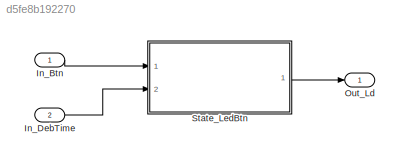
MODEL slx_d5fe8b192270
KIND model
CONFIG AbsTol = auto
CONFIG FixedStep = 0.001
CONFIG MaxStep = auto
CONFIG MinStep = auto
CONFIG RelTol = 1e-3
CONFIG SampleTimeConstraint = Unconstrained
CONFIG Solver = ode5
CONFIG SolverMode = Auto
CONFIG SolverName = ode5
CONFIG StartTime = 0.0
CONFIG StopTime = 20
BLOCK [Inport] In_Btn
  IconDisplay = Port number
  Interpolate = off
  OutDataTypeStr = boolean
  PortDimensions = 1
  VarSizeSig = No
BLOCK [Inport] In_DebTime
  IconDisplay = Port number
  OutDataTypeStr = uint16
  Port = 2
  PortDimensions = 1
  VarSizeSig = No
BLOCK [Outport] Out_Ld
  IconDisplay = Port number
  OutDataTypeStr = boolean
  VarSizeSig = No
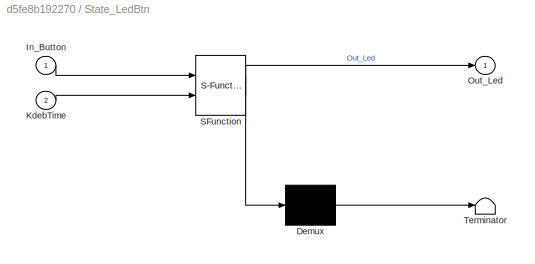
BLOCK [SubSystem] State_LedBtn
  ErrorFcn = Stateflow.Translate.translate
  PermitHierarchicalResolution = ExplicitOnly
  Ports = [2, 1]
  RequestExecContextInheritance = off
  SFBlockType = Chart
  TreatAsAtomicUnit = on
  Variant = off
BLOCK [Demux] State_LedBtn/ Demux 
  Outputs = 1
  Ports = [1, 1]
BLOCK [S-Function] State_LedBtn/ SFunction 
  EnableBusSupport = on
  FunctionName = sf_sfun
  PortCounts = [2 2]
  Ports = [2, 2]
  SFunctionDeploymentMode = off
  Tag = Stateflow S-Function StateMach 3
BLOCK [Terminator] State_LedBtn/ Terminator 
BLOCK [Inport] State_LedBtn/In_Button
  IconDisplay = Port number
BLOCK [Inport] State_LedBtn/KdebTime
  IconDisplay = Port number
  Port = 2
BLOCK [Outport] State_LedBtn/Out_Led
  IconDisplay = Port number
LINE In_Btn:1 -> State_LedBtn:1
LINE In_DebTime:1 -> State_LedBtn:2
LINE State_LedBtn:1 -> Out_Ld:1
CHART State_LedBtn states=3 transitions=5
  STATE_LABEL 'Led_Off\nentry:\n\tOut_Led = false;'
  STATE_LABEL 'Debounce\nentry:\n\tdebTime = uint16(0.0);\nduring:\n\tdebTime = debTime + 1.0;'
  STATE_LABEL 'Led_On\nentry:\n\tOut_Led = true;'
